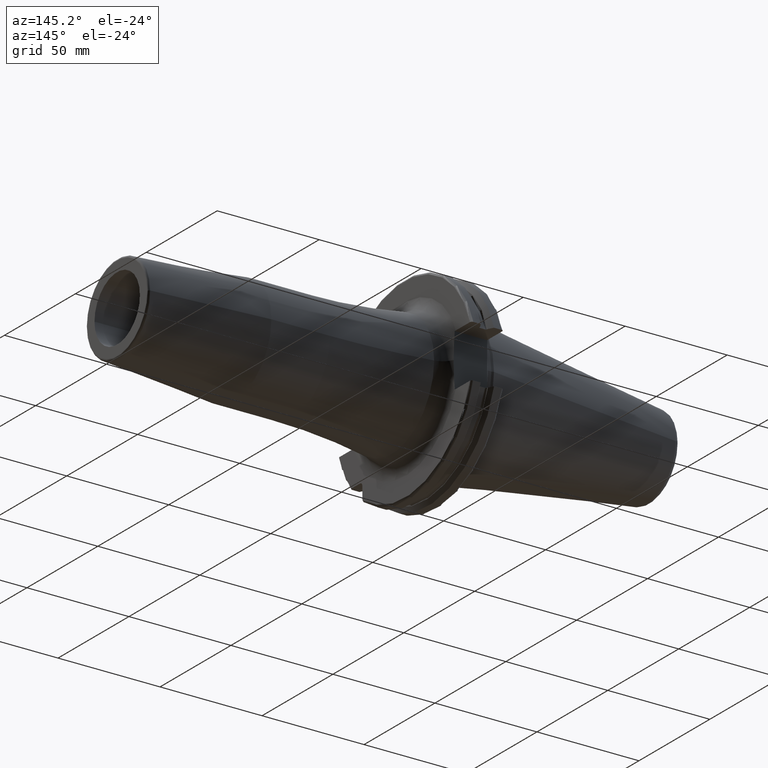
[diagram: clean part render]
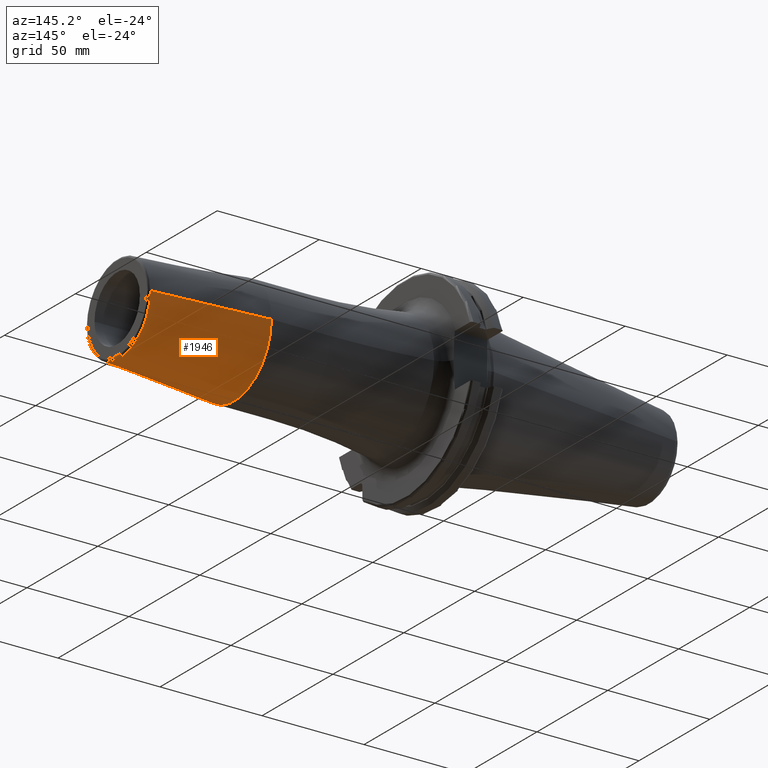
[diagram: same view with one face highlighted and labeled with its STEP entity id]
A machine part, auxiliary view. The second image highlights one B-rep face of the part: STEP entity #1946.
In plain terms, the highlighted conical surface has half-angle 4.5 deg.
Its self-contained STEP definition (entity closure, byte-faithful):
#258=CARTESIAN_POINT('',(1.028220786872E2,0.E0,0.E0));
#259=DIRECTION('',(-1.E0,0.E0,0.E0));
#260=DIRECTION('',(0.E0,1.E0,0.E0));
#261=AXIS2_PLACEMENT_3D('',#258,#259,#260);
#292=CARTESIAN_POINT('',(1.590784590957E2,0.E0,0.E0));
#293=DIRECTION('',(-1.E0,0.E0,0.E0));
#294=DIRECTION('',(0.E0,1.E0,0.E0));
#295=AXIS2_PLACEMENT_3D('',#292,#293,#294);
#297=DIRECTION('',(-9.969173337331E-1,7.845909572785E-2,2.372501278099E-14));
#298=VECTOR('',#297,5.643033630266E1);
#299=CARTESIAN_POINT('',(1.590784590957E2,2.207252684207E1,
-1.335565135998E-12));
#300=LINE('',#299,#298);
#301=DIRECTION('',(-9.969173337331E-1,-7.845909572785E-2,-2.371303737418E-14));
#302=VECTOR('',#301,5.643033630266E1);
#303=CARTESIAN_POINT('',(1.590784590957E2,-2.207252684207E1,
1.334889359765E-12));
#304=LINE('',#303,#302);
#1489=CARTESIAN_POINT('',(1.028220786872E2,2.65E1,0.E0));
#1490=CARTESIAN_POINT('',(1.028220786872E2,-2.65E1,0.E0));
#1491=VERTEX_POINT('',#1489);
#1492=VERTEX_POINT('',#1490);
#1493=CARTESIAN_POINT('',(1.590784590957E2,2.207252684207E1,0.E0));
#1494=CARTESIAN_POINT('',(1.590784590957E2,-2.207252684207E1,0.E0));
#1495=VERTEX_POINT('',#1493);
#1496=VERTEX_POINT('',#1494);
#1935=CARTESIAN_POINT('',(1.309502688915E2,0.E0,0.E0));
#1936=DIRECTION('',(-1.E0,0.E0,0.E0));
#1937=DIRECTION('',(0.E0,1.E0,0.E0));
#1938=AXIS2_PLACEMENT_3D('',#1935,#1936,#1937);
#1939=CONICAL_SURFACE('',#1938,2.428626342104E1,4.5E0);
#1940=ORIENTED_EDGE('',*,*,#1926,.F.);
#1941=ORIENTED_EDGE('',*,*,#1901,.T.);
#1942=ORIENTED_EDGE('',*,*,#1871,.T.);
#1943=ORIENTED_EDGE('',*,*,#1898,.F.);
#1944=EDGE_LOOP('',(#1940,#1941,#1942,#1943));
#1945=FACE_OUTER_BOUND('',#1944,.F.);
#1946=ADVANCED_FACE('',(#1945),#1939,.T.);
#262=CIRCLE('',#261,2.65E1);
#296=CIRCLE('',#295,2.207252684207E1);
#1871=EDGE_CURVE('',#1491,#1492,#262,.T.);
#1898=EDGE_CURVE('',#1496,#1492,#304,.T.);
#1901=EDGE_CURVE('',#1495,#1491,#300,.T.);
#1926=EDGE_CURVE('',#1495,#1496,#296,.T.);